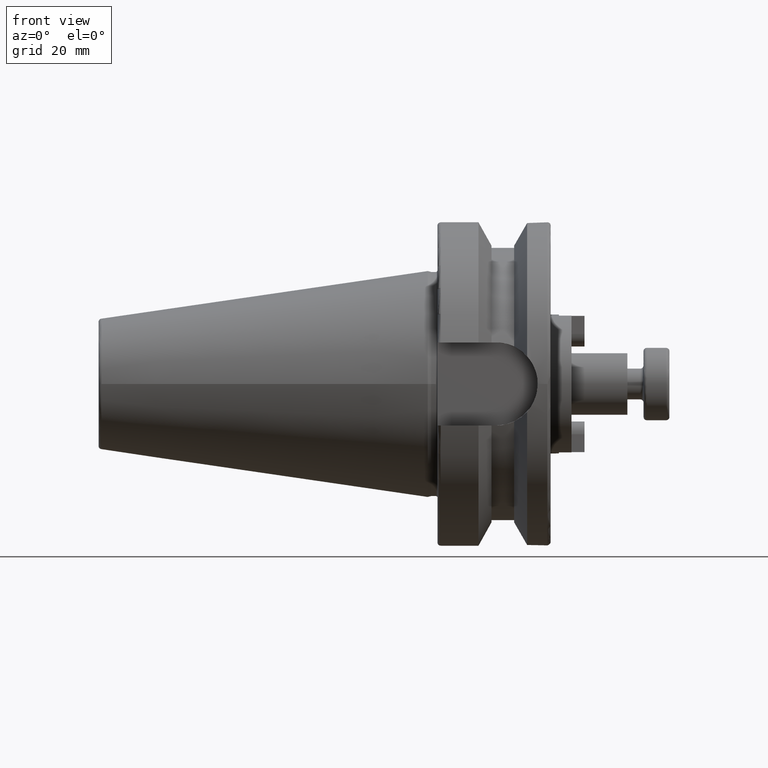
[diagram: clean part render]
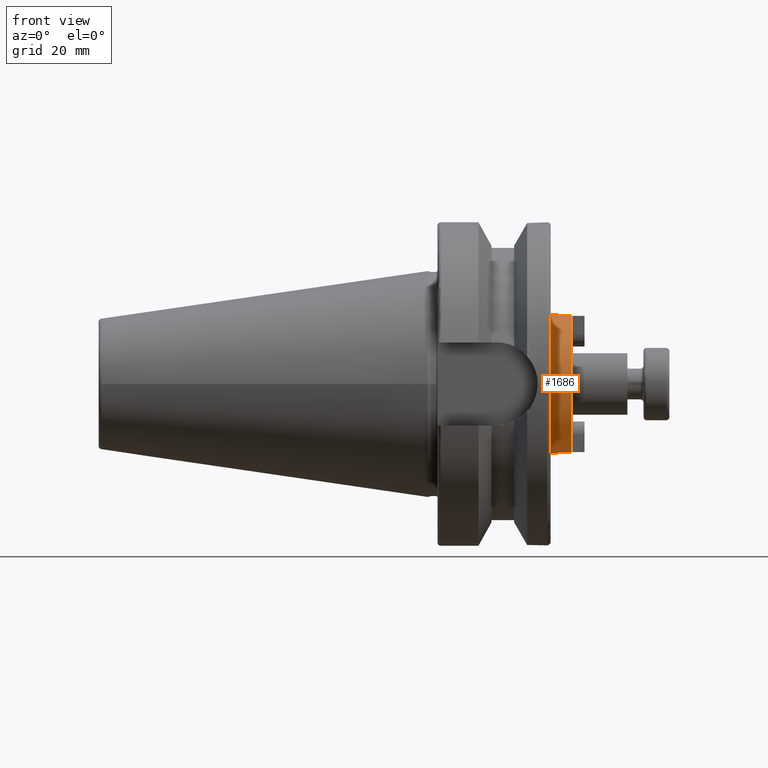
[diagram: same view with one face highlighted and labeled with its STEP entity id]
A machine part, front view. The second image highlights one B-rep face of the part: STEP entity #1686.
In plain terms, the highlighted cylindrical surface (bore or boss wall) has radius 21.5 mm, axis along (1, 0, 0).
Its self-contained STEP definition (entity closure, byte-faithful):
#92=CYLINDRICAL_SURFACE('',#1900,21.5);
#147=CIRCLE('',#1890,21.5);
#149=CIRCLE('',#1892,21.5);
#153=CIRCLE('',#1901,21.5);
#154=CIRCLE('',#1902,21.5);
#155=CIRCLE('',#1903,21.5);
#156=CIRCLE('',#1904,21.5);
#256=FACE_OUTER_BOUND('',#362,.T.);
#362=EDGE_LOOP('',(#1154,#1155,#1156,#1157,#1158,#1159,#1160,#1161,#1162,
#1163,#1164,#1165));
#476=LINE('',#2668,#596);
#484=LINE('',#2697,#604);
#486=LINE('',#2701,#606);
#487=LINE('',#2706,#607);
#488=LINE('',#2710,#608);
#596=VECTOR('',#2111,10.);
#604=VECTOR('',#2141,10.);
#606=VECTOR('',#2145,21.5);
#607=VECTOR('',#2150,10.);
#608=VECTOR('',#2153,10.);
#716=VERTEX_POINT('',#2666);
#717=VERTEX_POINT('',#2667);
#720=VERTEX_POINT('',#2675);
#722=VERTEX_POINT('',#2679);
#727=VERTEX_POINT('',#2696);
#728=VERTEX_POINT('',#2700);
#729=VERTEX_POINT('',#2703);
#730=VERTEX_POINT('',#2705);
#731=VERTEX_POINT('',#2707);
#732=VERTEX_POINT('',#2709);
#880=EDGE_CURVE('',#716,#717,#476,.T.);
#884=EDGE_CURVE('',#717,#720,#147,.T.);
#887=EDGE_CURVE('',#720,#722,#149,.T.);
#894=EDGE_CURVE('',#722,#727,#484,.T.);
#896=EDGE_CURVE('',#720,#728,#486,.T.);
#897=EDGE_CURVE('',#728,#728,#153,.T.);
#898=EDGE_CURVE('',#729,#727,#154,.T.);
#899=EDGE_CURVE('',#729,#730,#487,.T.);
#900=EDGE_CURVE('',#730,#731,#155,.T.);
#901=EDGE_CURVE('',#731,#732,#488,.T.);
#902=EDGE_CURVE('',#716,#732,#156,.T.);
#1154=ORIENTED_EDGE('',*,*,#880,.T.);
#1155=ORIENTED_EDGE('',*,*,#884,.T.);
#1156=ORIENTED_EDGE('',*,*,#896,.T.);
#1157=ORIENTED_EDGE('',*,*,#897,.F.);
#1158=ORIENTED_EDGE('',*,*,#896,.F.);
#1159=ORIENTED_EDGE('',*,*,#887,.T.);
#1160=ORIENTED_EDGE('',*,*,#894,.T.);
#1161=ORIENTED_EDGE('',*,*,#898,.F.);
#1162=ORIENTED_EDGE('',*,*,#899,.T.);
#1163=ORIENTED_EDGE('',*,*,#900,.T.);
#1164=ORIENTED_EDGE('',*,*,#901,.T.);
#1165=ORIENTED_EDGE('',*,*,#902,.F.);
#1686=ADVANCED_FACE('',(#256),#92,.T.);
#1890=AXIS2_PLACEMENT_3D('',#2676,#2117,#2118);
#1892=AXIS2_PLACEMENT_3D('',#2681,#2122,#2123);
#1900=AXIS2_PLACEMENT_3D('',#2699,#2143,#2144);
#1901=AXIS2_PLACEMENT_3D('',#2702,#2146,#2147);
#1902=AXIS2_PLACEMENT_3D('',#2704,#2148,#2149);
#1903=AXIS2_PLACEMENT_3D('',#2708,#2151,#2152);
#1904=AXIS2_PLACEMENT_3D('',#2711,#2154,#2155);
#2111=DIRECTION('',(-1.,0.,0.));
#2117=DIRECTION('center_axis',(-1.,0.,0.));
#2118=DIRECTION('ref_axis',(0.,0.,-1.));
#2122=DIRECTION('center_axis',(-1.,0.,0.));
#2123=DIRECTION('ref_axis',(0.,0.,-1.));
#2141=DIRECTION('',(1.,0.,0.));
#2143=DIRECTION('center_axis',(1.,0.,0.));
#2144=DIRECTION('ref_axis',(0.,0.,-1.));
#2145=DIRECTION('',(-1.,0.,0.));
#2146=DIRECTION('center_axis',(-1.,0.,0.));
#2147=DIRECTION('ref_axis',(0.,0.,-1.));
#2148=DIRECTION('center_axis',(1.,0.,0.));
#2149=DIRECTION('ref_axis',(0.,0.,-1.));
#2150=DIRECTION('',(-1.,0.,0.));
#2151=DIRECTION('center_axis',(-1.,0.,0.));
#2152=DIRECTION('ref_axis',(0.,0.,-1.));
#2153=DIRECTION('',(1.,0.,0.));
#2154=DIRECTION('center_axis',(1.,0.,0.));
#2155=DIRECTION('ref_axis',(0.,0.,-1.));
#2666=CARTESIAN_POINT('',(44.45,-3.965,21.1312274844601));
#2667=CARTESIAN_POINT('',(40.52,-3.965,21.1312274844601));
#2668=CARTESIAN_POINT('',(41.225,-3.965,21.1312274844601));
#2675=CARTESIAN_POINT('',(40.52,-2.63299061816681E-15,21.5));
#2676=CARTESIAN_POINT('Origin',(40.52,0.,0.));
#2679=CARTESIAN_POINT('',(40.52,3.965,21.1312274844601));
#2681=CARTESIAN_POINT('Origin',(40.52,0.,0.));
#2696=CARTESIAN_POINT('',(44.45,3.965,21.1312274844601));
#2697=CARTESIAN_POINT('',(41.225,3.965,21.1312274844601));
#2699=CARTESIAN_POINT('Origin',(41.225,0.,0.));
#2700=CARTESIAN_POINT('',(38.,-2.63299061816681E-15,21.5));
#2701=CARTESIAN_POINT('',(41.225,-2.63299061816681E-15,21.5));
#2702=CARTESIAN_POINT('Origin',(38.,0.,0.));
#2703=CARTESIAN_POINT('',(44.45,3.965,-21.1312274844601));
#2704=CARTESIAN_POINT('Origin',(44.45,0.,0.));
#2705=CARTESIAN_POINT('',(40.52,3.965,-21.1312274844601));
#2706=CARTESIAN_POINT('',(41.225,3.965,-21.1312274844601));
#2707=CARTESIAN_POINT('',(40.52,-3.965,-21.1312274844601));
#2708=CARTESIAN_POINT('Origin',(40.52,0.,0.));
#2709=CARTESIAN_POINT('',(44.45,-3.965,-21.1312274844601));
#2710=CARTESIAN_POINT('',(41.225,-3.965,-21.1312274844601));
#2711=CARTESIAN_POINT('Origin',(44.45,0.,0.));